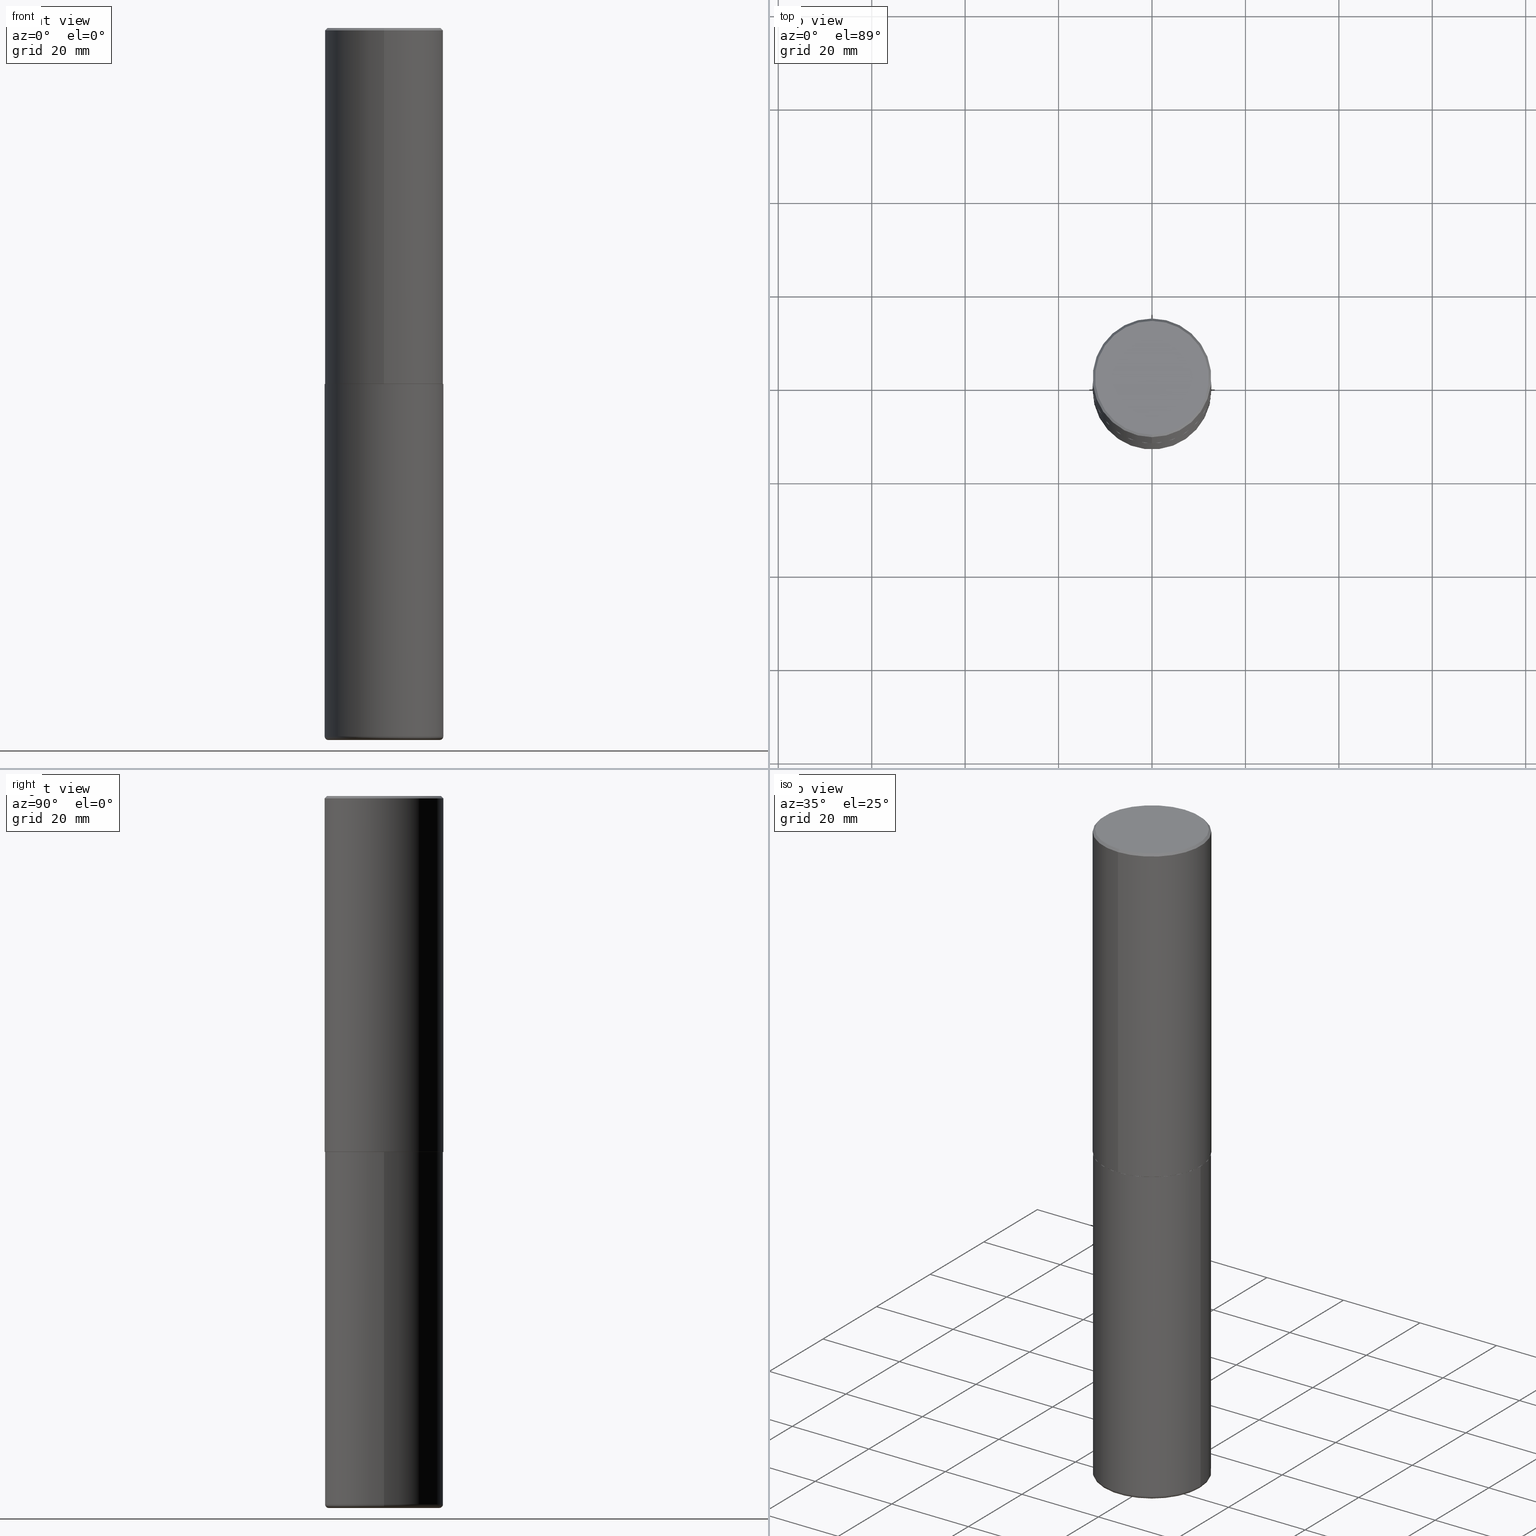
[diagram: canonical four-view strip — front | top / right | iso, engineering-drawing reading convention]
A machine part, canonical four-view strip (front | top / right | iso — engineering-drawing reading convention). The complete STEP part file that produces these views, byte-faithful:
ISO-10303-21;
HEADER;
FILE_DESCRIPTION (( 'STEP AP203' ),
    '1' );
FILE_NAME ('37713.STEP',
    '2024-03-02T08:59:55',
    ( '' ),
    ( '' ),
    'SwSTEP 2.0',
    'SolidWorks 2023',
    '' );
FILE_SCHEMA (( 'CONFIG_CONTROL_DESIGN' ));
ENDSEC;

DATA;
#1 = DIRECTION ( 'NONE',  ( -2.445468806185136597E-29, 3.491481338843145583E-15, 1.000000000000000000 ) ) ;
#2 = EDGE_CURVE ( 'NONE', #150, #393, #335, .T. ) ;
#3 = DIRECTION ( 'NONE',  ( -1.000000000000000000, 6.982962677686265922E-15, -4.876176775795935793E-29 ) ) ;
#4 = EDGE_CURVE ( 'NONE', #184, #339, #85, .T. ) ;
#5 = PERSON_AND_ORGANIZATION_ROLE ( 'creator' ) ;
#6 = AXIS2_PLACEMENT_3D ( 'NONE', #371, #20, #346 ) ;
#7 = LOCAL_TIME ( 3, 59, 55.00000000000000000, #134 ) ;
#8 = PRODUCT_DEFINITION_SHAPE ( 'NONE', 'NONE',  #90 ) ;
#9 = CALENDAR_DATE ( 2024, 2, 3 ) ;
#10 = VERTEX_POINT ( 'NONE', #353 ) ;
#11 = CYLINDRICAL_SURFACE ( 'NONE', #97, 0.5000000000000000000 ) ;
#12 = EDGE_LOOP ( 'NONE', ( #86, #406, #14, #206 ) ) ;
#13 = CARTESIAN_POINT ( 'NONE',  ( 4.889796067399450837E-31, -6.984597435057287381E-17, -0.02000000000000010797 ) ) ;
#14 = ORIENTED_EDGE ( 'NONE', *, *, #34, .F. ) ;
#15 = CIRCLE ( 'NONE', #111, 0.5000000000000002220 ) ;
#16 = DIRECTION ( 'NONE',  ( 0.000000000000000000, 0.000000000000000000, 1.000000000000000000 ) ) ;
#17 = DIRECTION ( 'NONE',  ( -2.445468806185136597E-29, 3.491481338843145583E-15, 1.000000000000000000 ) ) ;
#18 = EDGE_CURVE ( 'NONE', #40, #237, #403, .T. ) ;
#19 = ADVANCED_BREP_SHAPE_REPRESENTATION ( '37713', ( #156, #25, #104 ), #83 ) ;
#20 = DIRECTION ( 'NONE',  ( -2.444898033699712212E-29, 3.492298717528625990E-15, 1.000000000000000000 ) ) ;
#21 = DIRECTION ( 'NONE',  ( 6.982962677686265922E-15, 1.000000000000000000, -3.492298717528626385E-15 ) ) ;
#22 = ORIENTED_EDGE ( 'NONE', *, *, #289, .F. ) ;
#23 = AXIS2_PLACEMENT_3D ( 'NONE', #36, #98, #3 ) ;
#24 = CYLINDRICAL_SURFACE ( 'NONE', #67, 0.5000000000000001110 ) ;
#25 = MANIFOLD_SOLID_BREP ( 'Body-Move/Copy2[2]', #61 ) ;
#26 = DIRECTION ( 'NONE',  ( 1.000000000000000000, -6.982962677686262766E-15, 0.000000000000000000 ) ) ;
#27 = EDGE_CURVE ( 'NONE', #339, #404, #408, .T. ) ;
#28 = PERSON_AND_ORGANIZATION_ROLE ( 'design_supplier' ) ;
#29 = DIRECTION ( 'NONE',  ( -2.444898033699711931E-29, 3.492298717528626385E-15, 1.000000000000000000 ) ) ;
#30 = AXIS2_PLACEMENT_3D ( 'NONE', #95, #1, #132 ) ;
#31 = LINE ( 'NONE', #360, #286 ) ;
#32 = PERSON_AND_ORGANIZATION ( #253, #212 ) ;
#33 = DIRECTION ( 'NONE',  ( -6.982962677686265922E-15, -1.000000000000000000, 3.492298717528625990E-15 ) ) ;
#34 = EDGE_CURVE ( 'NONE', #237, #339, #15, .T. ) ;
#35 = DIRECTION ( 'NONE',  ( -4.851104656540946131E-15, -0.7071067811865473507, -0.7071067811865476838 ) ) ;
#36 = CARTESIAN_POINT ( 'NONE',  ( 4.931676200070994304E-29, -3.489875012836576194E-14, -6.000000000000001776 ) ) ;
#37 = CARTESIAN_POINT ( 'NONE',  ( -3.430248998885764992E-15, -0.5000000000000001110, -0.01999999999999835937 ) ) ;
#38 = EDGE_CURVE ( 'NONE', #184, #40, #74, .T. ) ;
#39 = LENGTH_MEASURE_WITH_UNIT ( LENGTH_MEASURE( 0.02539999999999999897 ), #340 );
#40 = VERTEX_POINT ( 'NONE', #155 ) ;
#41 = DIRECTION ( 'NONE',  ( 1.000000000000000000, 0.000000000000000000, 0.000000000000000000 ) ) ;
#42 = ORIENTED_EDGE ( 'NONE', *, *, #349, .F. ) ;
#43 = AXIS2_PLACEMENT_3D ( 'NONE', #151, #285, #358 ) ;
#44 = CALENDAR_DATE ( 2024, 2, 3 ) ;
#45 = DATE_AND_TIME ( #44, #7 ) ;
#46 = EDGE_CURVE ( 'NONE', #393, #150, #152, .T. ) ;
#47 = ORIENTED_EDGE ( 'NONE', *, *, #417, .T. ) ;
#48 = CIRCLE ( 'NONE', #318, 0.4999999999999999445 ) ;
#49 = DIRECTION ( 'NONE',  ( 5.024295867789263036E-15, 0.7071067811867189912, 0.7071067811863760433 ) ) ;
#50 = EDGE_CURVE ( 'NONE', #136, #209, #231, .T. ) ;
#51 = FACE_OUTER_BOUND ( 'NONE', #78, .T. ) ;
#52 = ORIENTED_EDGE ( 'NONE', *, *, #392, .T. ) ;
#53 = DIMENSIONAL_EXPONENTS ( 1.000000000000000000, 0.000000000000000000, 0.000000000000000000, 0.000000000000000000, 0.000000000000000000, 0.000000000000000000, 0.000000000000000000 ) ;
#54 = FACE_OUTER_BOUND ( 'NONE', #309, .T. ) ;
#55 = AXIS2_PLACEMENT_3D ( 'NONE', #383, #332, #415 ) ;
#56 = ADVANCED_FACE ( 'NONE', ( #92 ), #24, .T. ) ;
#57 = DIRECTION ( 'NONE',  ( 2.444898033699711371E-29, -3.492298717528626385E-15, -1.000000000000000000 ) ) ;
#58 = EDGE_CURVE ( 'NONE', #237, #214, #188, .T. ) ;
#59 = DIRECTION ( 'NONE',  ( -2.444898033699712212E-29, 3.492298717528625990E-15, 1.000000000000000000 ) ) ;
#60 = ORIENTED_EDGE ( 'NONE', *, *, #189, .F. ) ;
#61 = CLOSED_SHELL ( 'NONE', ( #296, #56, #271, #234, #87, #76, #71, #121 ) ) ;
#62 = APPLICATION_CONTEXT ( 'configuration controlled 3d designs of mechanical parts and assemblies' ) ;
#63 = FACE_OUTER_BOUND ( 'NONE', #341, .T. ) ;
#64 = FACE_OUTER_BOUND ( 'NONE', #342, .T. ) ;
#65 = CARTESIAN_POINT ( 'NONE',  ( 0.4699999999999999734, -2.412613605140612280E-14, -5.969999999999999751 ) ) ;
#66 = CARTESIAN_POINT ( 'NONE',  ( 7.334694101099137475E-29, -1.047689615258587837E-14, -3.000000000000000444 ) ) ;
#67 = AXIS2_PLACEMENT_3D ( 'NONE', #213, #59, #218 ) ;
#68 = APPROVAL_PERSON_ORGANIZATION ( #109, #257, #69 ) ;
#69 = APPROVAL_ROLE ( '' ) ;
#70 = EDGE_CURVE ( 'NONE', #209, #404, #127, .T. ) ;
#71 = ADVANCED_FACE ( 'NONE', ( #54 ), #314, .F. ) ;
#72 = DIRECTION ( 'NONE',  ( 1.000000000000000000, -6.982962677686266711E-15, 0.000000000000000000 ) ) ;
#73 = ORIENTED_EDGE ( 'NONE', *, *, #276, .F. ) ;
#74 = CIRCLE ( 'NONE', #277, 0.4989999999999999991 ) ;
#75 = CONICAL_SURFACE ( 'NONE', #390, 0.5000000000000000000, 0.7853981633974446153 ) ;
#76 = ADVANCED_FACE ( 'NONE', ( #345 ), #193, .T. ) ;
#77 = FACE_OUTER_BOUND ( 'NONE', #145, .T. ) ;
#78 = EDGE_LOOP ( 'NONE', ( #240, #310 ) ) ;
#79 = CARTESIAN_POINT ( 'NONE',  ( -0.4699999999999999734, -1.745038354453973785E-14, -6.000000000000001776 ) ) ;
#80 = ORIENTED_EDGE ( 'NONE', *, *, #27, .F. ) ;
#81 = CALENDAR_DATE ( 2024, 2, 3 ) ;
#82 = DIRECTION ( 'NONE',  ( -2.444898033699712212E-29, 3.492298717528625990E-15, 1.000000000000000000 ) ) ;
#83 =( GEOMETRIC_REPRESENTATION_CONTEXT ( 3 ) GLOBAL_UNCERTAINTY_ASSIGNED_CONTEXT ( ( #414 ) ) GLOBAL_UNIT_ASSIGNED_CONTEXT ( ( #278, #395, #102 ) ) REPRESENTATION_CONTEXT ( 'NONE', 'WORKASPACE' ) );
#84 = CARTESIAN_POINT ( 'NONE',  ( -0.5000000000000003331, -1.729142991409307210E-14, -5.969999999999999751 ) ) ;
#85 = LINE ( 'NONE', #249, #416 ) ;
#86 = ORIENTED_EDGE ( 'NONE', *, *, #125, .T. ) ;
#87 = ADVANCED_FACE ( 'NONE', ( #154 ), #288, .T. ) ;
#88 = DIRECTION ( 'NONE',  ( -2.444898033699712212E-29, 3.492298717528625990E-15, 1.000000000000000000 ) ) ;
#89 = EDGE_LOOP ( 'NONE', ( #334, #259, #204, #282 ) ) ;
#90 = PRODUCT_DEFINITION ( 'UNKNOWN', '', #248, #114 ) ;
#91 = CONICAL_SURFACE ( 'NONE', #126, 0.5000000000000000000, 0.7853981633974446153 ) ;
#92 = FACE_OUTER_BOUND ( 'NONE', #89, .T. ) ;
#93 = DIRECTION ( 'NONE',  ( 1.000000000000000000, -6.982962677686263555E-15, 0.000000000000000000 ) ) ;
#94 = APPROVAL_STATUS ( 'not_yet_approved' ) ;
#95 = CARTESIAN_POINT ( 'NONE',  ( 0.000000000000000000, 0.000000000000000000, 0.000000000000000000 ) ) ;
#96 = EDGE_CURVE ( 'NONE', #339, #237, #305, .T. ) ;
#97 = AXIS2_PLACEMENT_3D ( 'NONE', #207, #170, #270 ) ;
#98 = DIRECTION ( 'NONE',  ( 2.438088387897960049E-29, -3.491481338843145188E-15, -1.000000000000000000 ) ) ;
#99 = DIRECTION ( 'NONE',  ( -2.444898033699712212E-29, 3.492298717528625990E-15, 1.000000000000000000 ) ) ;
#100 = CARTESIAN_POINT ( 'NONE',  ( 1.459944877292526494E-28, -2.084414359289357934E-14, -5.969999999999999751 ) ) ;
#101 = APPROVAL ( #94, 'UNSPECIFIED' ) ;
#102 =( NAMED_UNIT ( * ) SI_UNIT ( $, .STERADIAN. ) SOLID_ANGLE_UNIT ( ) );
#103 = VECTOR ( 'NONE', #350, 39.37007874015748143 ) ;
#104 = AXIS2_PLACEMENT_3D ( 'NONE', #205, #16, #41 ) ;
#105 = FACE_OUTER_BOUND ( 'NONE', #398, .T. ) ;
#106 = EDGE_LOOP ( 'NONE', ( #80, #208, #169, #73 ) ) ;
#107 = VERTEX_POINT ( 'NONE', #401 ) ;
#108 = EDGE_CURVE ( 'NONE', #110, #107, #374, .T. ) ;
#109 = PERSON_AND_ORGANIZATION ( #253, #212 ) ;
#110 = VERTEX_POINT ( 'NONE', #84 ) ;
#111 = AXIS2_PLACEMENT_3D ( 'NONE', #405, #88, #254 ) ;
#112 = AXIS2_PLACEMENT_3D ( 'NONE', #362, #366, #72 ) ;
#113 = CC_DESIGN_DATE_AND_TIME_ASSIGNMENT ( #45, #407, ( #90 ) ) ;
#114 = DESIGN_CONTEXT ( 'detailed design', #177, 'design' ) ;
#115 = CARTESIAN_POINT ( 'NONE',  ( -0.5000000000000000000, 3.552713678800500929E-15, -2.459467545127452891E-29 ) ) ;
#116 = AXIS2_PLACEMENT_3D ( 'NONE', #187, #251, #284 ) ;
#117 = CC_DESIGN_SECURITY_CLASSIFICATION ( #418, ( #248 ) ) ;
#118 = DIRECTION ( 'NONE',  ( -4.937700262165728178E-15, -0.7071067811867141062, 0.7071067811863809283 ) ) ;
#119 = DIRECTION ( 'NONE',  ( -6.982962677686265922E-15, -1.000000000000000000, 3.492298717528625990E-15 ) ) ;
#120 = ORIENTED_EDGE ( 'NONE', *, *, #125, .F. ) ;
#121 = ADVANCED_FACE ( 'NONE', ( #51 ), #183, .F. ) ;
#122 = APPROVAL_STATUS ( 'not_yet_approved' ) ;
#123 = DIRECTION ( 'NONE',  ( -2.444898033699711931E-29, 3.492298717528626385E-15, 1.000000000000000000 ) ) ;
#124 = PERSON_AND_ORGANIZATION ( #253, #212 ) ;
#125 = EDGE_CURVE ( 'NONE', #40, #184, #357, .T. ) ;
#126 = AXIS2_PLACEMENT_3D ( 'NONE', #198, #297, #356 ) ;
#127 = LINE ( 'NONE', #158, #103 ) ;
#128 = EDGE_CURVE ( 'NONE', #150, #10, #238, .T. ) ;
#129 = DIRECTION ( 'NONE',  ( -6.982962677686266711E-15, -1.000000000000000000, 3.491481338843145583E-15 ) ) ;
#130 = FACE_OUTER_BOUND ( 'NONE', #369, .T. ) ;
#131 = CARTESIAN_POINT ( 'NONE',  ( 0.4699999999999999734, -2.423088049157142248E-14, -6.000000000000001776 ) ) ;
#132 = DIRECTION ( 'NONE',  ( 1.000000000000000000, -6.982962677686266711E-15, 4.876176775795935793E-29 ) ) ;
#133 = DIRECTION ( 'NONE',  ( -2.445468806185136877E-29, 3.491481338843145188E-15, 1.000000000000000000 ) ) ;
#134 = COORDINATED_UNIVERSAL_TIME_OFFSET ( 5, 0, .BEHIND. ) ;
#135 = AXIS2_PLACEMENT_3D ( 'NONE', #164, #230, #388 ) ;
#136 = VERTEX_POINT ( 'NONE', #302 ) ;
#137 = PLANE ( 'NONE',  #267 ) ;
#138 = ADVANCED_FACE ( 'NONE', ( #63 ), #331, .T. ) ;
#139 = EDGE_LOOP ( 'NONE', ( #147, #245, #269, #272 ) ) ;
#140 = DIRECTION ( 'NONE',  ( -2.444898033699712212E-29, 3.492298717528625990E-15, 1.000000000000000000 ) ) ;
#141 = ORIENTED_EDGE ( 'NONE', *, *, #246, .T. ) ;
#142 = CARTESIAN_POINT ( 'NONE',  ( 1.459944877292526494E-28, -2.084414359289357934E-14, -5.969999999999999751 ) ) ;
#143 = AXIS2_PLACEMENT_3D ( 'NONE', #313, #17, #292 ) ;
#144 = CIRCLE ( 'NONE', #306, 0.4799999999999999267 ) ;
#145 = EDGE_LOOP ( 'NONE', ( #280, #275, #287, #176 ) ) ;
#146 = DATE_TIME_ROLE ( 'classification_date' ) ;
#147 = ORIENTED_EDGE ( 'NONE', *, *, #2, .T. ) ;
#148 = DATE_AND_TIME ( #382, #256 ) ;
#149 = DIRECTION ( 'NONE',  ( -2.444898033699712212E-29, 3.492298717528625990E-15, 1.000000000000000000 ) ) ;
#150 = VERTEX_POINT ( 'NONE', #131 ) ;
#151 = CARTESIAN_POINT ( 'NONE',  ( 7.334694101099137475E-29, -1.047689615258587837E-14, -3.000000000000000444 ) ) ;
#152 = CIRCLE ( 'NONE', #255, 0.4699999999999999734 ) ;
#153 = APPROVAL_PERSON_ORGANIZATION ( #412, #379, #221 ) ;
#154 = FACE_OUTER_BOUND ( 'NONE', #106, .T. ) ;
#155 = CARTESIAN_POINT ( 'NONE',  ( -3.484498376165373188E-15, -0.4990000000000104352, -2.999999999999998668 ) ) ;
#156 = MANIFOLD_SOLID_BREP ( 'Body-Move/Copy2[1]', #165 ) ;
#157 = ORIENTED_EDGE ( 'NONE', *, *, #96, .F. ) ;
#158 = CARTESIAN_POINT ( 'NONE',  ( 3.491481338843133355E-15, 0.4999999999999999445, -0.02000000000000185310 ) ) ;
#159 = AXIS2_PLACEMENT_3D ( 'NONE', #258, #185, #294 ) ;
#160 = APPROVAL_PERSON_ORGANIZATION ( #295, #101, #217 ) ;
#161 = CIRCLE ( 'NONE', #337, 0.03000000000000077258 ) ;
#162 = DIRECTION ( 'NONE',  ( -2.445468806185136597E-29, 3.491481338843145583E-15, 1.000000000000000000 ) ) ;
#163 = CARTESIAN_POINT ( 'NONE',  ( 1.459944877292526494E-28, -2.084414359289357934E-14, -5.969999999999999751 ) ) ;
#164 = CARTESIAN_POINT ( 'NONE',  ( 1.459944877292526494E-28, -2.084414359289357934E-14, -5.969999999999999751 ) ) ;
#165 = CLOSED_SHELL ( 'NONE', ( #307, #199, #400, #410, #389, #138 ) ) ;
#166 = LOCAL_TIME ( 3, 59, 55.00000000000000000, #281 ) ;
#167 = FACE_OUTER_BOUND ( 'NONE', #348, .T. ) ;
#168 = DIRECTION ( 'NONE',  ( -2.445468806185136597E-29, 3.491481338843145583E-15, 1.000000000000000000 ) ) ;
#169 = ORIENTED_EDGE ( 'NONE', *, *, #58, .T. ) ;
#170 = DIRECTION ( 'NONE',  ( -2.445468806185136597E-29, 3.491481338843145583E-15, 1.000000000000000000 ) ) ;
#171 = CC_DESIGN_APPROVAL ( #379, ( #418 ) ) ;
#172 = ORIENTED_EDGE ( 'NONE', *, *, #229, .F. ) ;
#173 = APPLICATION_PROTOCOL_DEFINITION ( 'international standard', 'config_control_design', 1994, #62 ) ;
#174 = ORIENTED_EDGE ( 'NONE', *, *, #50, .F. ) ;
#175 = CARTESIAN_POINT ( 'NONE',  ( 7.336406418555409790E-29, -1.047444401652943635E-14, -3.000000000000000444 ) ) ;
#176 = ORIENTED_EDGE ( 'NONE', *, *, #392, .F. ) ;
#177 = APPLICATION_CONTEXT ( 'configuration controlled 3d designs of mechanical parts and assemblies' ) ;
#178 = CARTESIAN_POINT ( 'NONE',  ( 3.491481338843133355E-15, 0.4999999999999999445, -0.02000000000000185310 ) ) ;
#179 = ORIENTED_EDGE ( 'NONE', *, *, #46, .F. ) ;
#180 = CC_DESIGN_PERSON_AND_ORGANIZATION_ASSIGNMENT ( #338, #5, ( #90 ) ) ;
#181 = CIRCLE ( 'NONE', #186, 0.5000000000000000000 ) ;
#182 = DIRECTION ( 'NONE',  ( -6.982962677686265922E-15, -1.000000000000000000, 3.492298717528625990E-15 ) ) ;
#183 = PLANE ( 'NONE',  #224 ) ;
#184 = VERTEX_POINT ( 'NONE', #384 ) ;
#185 = DIRECTION ( 'NONE',  ( -2.444898033699711371E-29, 3.492298717528626385E-15, 1.000000000000000000 ) ) ;
#186 = AXIS2_PLACEMENT_3D ( 'NONE', #411, #99, #324 ) ;
#187 = CARTESIAN_POINT ( 'NONE',  ( 7.332249203065438921E-29, -1.047340385386834930E-14, -2.999000000000000554 ) ) ;
#188 = LINE ( 'NONE', #322, #311 ) ;
#189 = EDGE_CURVE ( 'NONE', #10, #364, #31, .T. ) ;
#190 = ORIENTED_EDGE ( 'NONE', *, *, #46, .T. ) ;
#191 = PERSON_AND_ORGANIZATION_ROLE ( 'creator' ) ;
#192 = DIRECTION ( 'NONE',  ( 2.444898033699712212E-29, -3.492298717528625990E-15, -1.000000000000000000 ) ) ;
#193 = CONICAL_SURFACE ( 'NONE', #6, 0.4989999999999999991, 0.7853981633976873100 ) ;
#194 = APPROVAL_DATE_TIME ( #148, #101 ) ;
#195 = LOCAL_TIME ( 3, 59, 55.00000000000000000, #203 ) ;
#196 = CARTESIAN_POINT ( 'NONE',  ( -2.514251026725007597E-45, 3.591362713352002573E-31, 1.028366415314403880E-16 ) ) ;
#197 = DATE_AND_TIME ( #81, #166 ) ;
#198 = CARTESIAN_POINT ( 'NONE',  ( 4.889796067399450837E-31, -6.984597435057287381E-17, -0.02000000000000010797 ) ) ;
#199 = ADVANCED_FACE ( 'NONE', ( #380 ), #232, .T. ) ;
#200 = DIRECTION ( 'NONE',  ( -6.982962677686265922E-15, -1.000000000000000000, 3.284787166730577015E-15 ) ) ;
#201 = AXIS2_PLACEMENT_3D ( 'NONE', #100, #162, #227 ) ;
#202 = DIRECTION ( 'NONE',  ( 6.982962677686265922E-15, 1.000000000000000000, -3.491643216902136408E-15 ) ) ;
#203 = COORDINATED_UNIVERSAL_TIME_OFFSET ( 5, 0, .BEHIND. ) ;
#204 = ORIENTED_EDGE ( 'NONE', *, *, #417, .F. ) ;
#205 = CARTESIAN_POINT ( 'NONE',  ( 0.000000000000000000, 0.000000000000000000, 0.000000000000000000 ) ) ;
#206 = ORIENTED_EDGE ( 'NONE', *, *, #18, .F. ) ;
#207 = CARTESIAN_POINT ( 'NONE',  ( 0.000000000000000000, 0.000000000000000000, 0.000000000000000000 ) ) ;
#208 = ORIENTED_EDGE ( 'NONE', *, *, #96, .T. ) ;
#209 = VERTEX_POINT ( 'NONE', #264 ) ;
#210 = SHAPE_DEFINITION_REPRESENTATION ( #8, #19 ) ;
#211 = CARTESIAN_POINT ( 'NONE',  ( 1.467281283711082406E-28, -2.094888803305887902E-14, -6.000000000000001776 ) ) ;
#212 = ORGANIZATION ( 'UNSPECIFIED', 'UNSPECIFIED', '' ) ;
#213 = CARTESIAN_POINT ( 'NONE',  ( 0.000000000000000000, 0.000000000000000000, 0.000000000000000000 ) ) ;
#214 = VERTEX_POINT ( 'NONE', #37 ) ;
#215 = CARTESIAN_POINT ( 'NONE',  ( 7.334694101099137475E-29, -1.047689615258587837E-14, -3.000000000000000444 ) ) ;
#216 = CARTESIAN_POINT ( 'NONE',  ( 0.000000000000000000, 0.000000000000000000, 0.000000000000000000 ) ) ;
#217 = APPROVAL_ROLE ( '' ) ;
#218 = DIRECTION ( 'NONE',  ( -6.982962677686265922E-15, -1.000000000000000000, 3.492298717528625990E-15 ) ) ;
#219 = ORIENTED_EDGE ( 'NONE', *, *, #108, .T. ) ;
#220 = DIRECTION ( 'NONE',  ( 7.105427357601001859E-15, 1.000000000000000000, -3.491481338843145583E-15 ) ) ;
#221 = APPROVAL_ROLE ( '' ) ;
#222 = CARTESIAN_POINT ( 'NONE',  ( 3.552713678800539584E-15, 0.4999999999999898970, -2.999000000000001886 ) ) ;
#223 = EDGE_CURVE ( 'NONE', #10, #110, #48, .T. ) ;
#224 = AXIS2_PLACEMENT_3D ( 'NONE', #315, #57, #21 ) ;
#225 = CALENDAR_DATE ( 2024, 2, 3 ) ;
#226 = CIRCLE ( 'NONE', #325, 0.5000000000000000000 ) ;
#227 = DIRECTION ( 'NONE',  ( 1.000000000000000000, -6.982962677686268288E-15, 4.883557194083112901E-29 ) ) ;
#228 = FACE_OUTER_BOUND ( 'NONE', #12, .T. ) ;
#229 = EDGE_CURVE ( 'NONE', #393, #110, #161, .T. ) ;
#230 = DIRECTION ( 'NONE',  ( -2.445468806185136597E-29, 3.491481338843145583E-15, 1.000000000000000000 ) ) ;
#231 = CIRCLE ( 'NONE', #316, 0.4799999999999999267 ) ;
#232 = TOROIDAL_SURFACE ( 'NONE', #201, 0.4699999999999999734, 0.03000000000000077258 ) ;
#233 = MECHANICAL_CONTEXT ( 'NONE', #62, 'mechanical' ) ;
#234 = ADVANCED_FACE ( 'NONE', ( #64 ), #91, .T. ) ;
#235 = DATE_AND_TIME ( #9, #195 ) ;
#236 = DIRECTION ( 'NONE',  ( 2.438088387897960049E-29, -3.491481338843145188E-15, -1.000000000000000000 ) ) ;
#237 = VERTEX_POINT ( 'NONE', #262 ) ;
#238 = CIRCLE ( 'NONE', #396, 0.03000000000000077258 ) ;
#239 = VECTOR ( 'NONE', #35, 39.37007874015748143 ) ;
#240 = ORIENTED_EDGE ( 'NONE', *, *, #349, .T. ) ;
#241 = CC_DESIGN_PERSON_AND_ORGANIZATION_ASSIGNMENT ( #32, #323, ( #418 ) ) ;
#242 = DIRECTION ( 'NONE',  ( -2.445468806185136597E-29, 3.491481338843145583E-15, 1.000000000000000000 ) ) ;
#243 = ORIENTED_EDGE ( 'NONE', *, *, #246, .F. ) ;
#244 = EDGE_LOOP ( 'NONE', ( #304, #375, #290, #157 ) ) ;
#245 = ORIENTED_EDGE ( 'NONE', *, *, #229, .T. ) ;
#246 = EDGE_CURVE ( 'NONE', #136, #214, #330, .T. ) ;
#247 = DIRECTION ( 'NONE',  ( -2.445468806185136877E-29, 3.491481338843145188E-15, 1.000000000000000000 ) ) ;
#248 = PRODUCT_DEFINITION_FORMATION_WITH_SPECIFIED_SOURCE ( 'ANY', '', #399, .NOT_KNOWN. ) ;
#249 = CARTESIAN_POINT ( 'NONE',  ( 3.545608251442972496E-15, 0.4989999999999895630, -3.000000000000001776 ) ) ;
#250 = ORIENTED_EDGE ( 'NONE', *, *, #289, .T. ) ;
#251 = DIRECTION ( 'NONE',  ( -2.444898033699712212E-29, 3.492298717528625990E-15, 1.000000000000000000 ) ) ;
#252 = EDGE_CURVE ( 'NONE', #110, #10, #279, .T. ) ;
#253 = PERSON ( 'UNSPECIFIED', 'UNSPECIFIED', 'UNSPECIFIED', ('UNSPECIFIED'), ('UNSPECIFIED'), ('UNSPECIFIED') ) ;
#254 = DIRECTION ( 'NONE',  ( -6.982962677686266711E-15, -1.000000000000000000, 3.278217592397114284E-15 ) ) ;
#255 = AXIS2_PLACEMENT_3D ( 'NONE', #211, #372, #26 ) ;
#256 = LOCAL_TIME ( 3, 59, 55.00000000000000000, #321 ) ;
#257 = APPROVAL ( #361, 'UNSPECIFIED' ) ;
#258 = CARTESIAN_POINT ( 'NONE',  ( 7.334694101099137475E-29, -1.047689615258587837E-14, -3.000000000000000444 ) ) ;
#259 = ORIENTED_EDGE ( 'NONE', *, *, #27, .T. ) ;
#260 = PERSON_AND_ORGANIZATION ( #253, #212 ) ;
#261 = CARTESIAN_POINT ( 'NONE',  ( 4.889796067399450837E-31, -6.984597435057287381E-17, -0.02000000000000010797 ) ) ;
#262 = CARTESIAN_POINT ( 'NONE',  ( -3.491481338843061569E-15, -0.5000000000000107692, -2.998999999999998778 ) ) ;
#263 = CIRCLE ( 'NONE', #55, 0.5000000000000000000 ) ;
#264 = CARTESIAN_POINT ( 'NONE',  ( 3.421651712066270057E-15, 0.4799999999999999267, -1.573466742882299844E-15 ) ) ;
#265 = CARTESIAN_POINT ( 'NONE',  ( -0.4699999999999999734, -1.750459273482110708E-14, -5.969999999999999751 ) ) ;
#266 = APPLICATION_PROTOCOL_DEFINITION ( 'international standard', 'config_control_design', 1994, #177 ) ;
#267 = AXIS2_PLACEMENT_3D ( 'NONE', #175, #236, #268 ) ;
#268 = DIRECTION ( 'NONE',  ( -1.000000000000000000, 6.982962677686265922E-15, -4.876176775795935793E-29 ) ) ;
#269 = ORIENTED_EDGE ( 'NONE', *, *, #223, .F. ) ;
#270 = DIRECTION ( 'NONE',  ( 1.000000000000000000, -6.982962677686266711E-15, 4.876176775795935793E-29 ) ) ;
#271 = ADVANCED_FACE ( 'NONE', ( #299 ), #75, .T. ) ;
#272 = ORIENTED_EDGE ( 'NONE', *, *, #128, .F. ) ;
#273 = ORIENTED_EDGE ( 'NONE', *, *, #70, .T. ) ;
#274 = DIRECTION ( 'NONE',  ( -6.982962677686265922E-15, -1.000000000000000000, 3.491643216902136408E-15 ) ) ;
#275 = ORIENTED_EDGE ( 'NONE', *, *, #252, .T. ) ;
#276 = EDGE_CURVE ( 'NONE', #404, #214, #181, .T. ) ;
#277 = AXIS2_PLACEMENT_3D ( 'NONE', #215, #409, #347 ) ;
#278 =( CONVERSION_BASED_UNIT ( 'INCH', #39 ) LENGTH_UNIT ( ) NAMED_UNIT ( #53 ) );
#279 = CIRCLE ( 'NONE', #135, 0.4999999999999999445 ) ;
#280 = ORIENTED_EDGE ( 'NONE', *, *, #108, .F. ) ;
#281 = COORDINATED_UNIVERSAL_TIME_OFFSET ( 5, 0, .BEHIND. ) ;
#282 = ORIENTED_EDGE ( 'NONE', *, *, #58, .F. ) ;
#283 = CC_DESIGN_PERSON_AND_ORGANIZATION_ASSIGNMENT ( #124, #191, ( #248 ) ) ;
#284 = DIRECTION ( 'NONE',  ( -6.982962677686266711E-15, -1.000000000000000000, 3.278217592397114284E-15 ) ) ;
#285 = DIRECTION ( 'NONE',  ( -2.444898033699712212E-29, 3.492298717528625990E-15, 1.000000000000000000 ) ) ;
#286 = VECTOR ( 'NONE', #133, 39.37007874015748143 ) ;
#287 = ORIENTED_EDGE ( 'NONE', *, *, #189, .T. ) ;
#288 = CYLINDRICAL_SURFACE ( 'NONE', #370, 0.5000000000000001110 ) ;
#289 = EDGE_CURVE ( 'NONE', #364, #107, #263, .T. ) ;
#290 = ORIENTED_EDGE ( 'NONE', *, *, #18, .T. ) ;
#291 = DATE_AND_TIME ( #225, #351 ) ;
#292 = DIRECTION ( 'NONE',  ( 1.000000000000000000, -6.982962677686262766E-15, 0.000000000000000000 ) ) ;
#293 = EDGE_LOOP ( 'NONE', ( #174, #141, #47, #381 ) ) ;
#294 = DIRECTION ( 'NONE',  ( -6.982962677686265922E-15, -1.000000000000000000, 3.492298717528626385E-15 ) ) ;
#295 = PERSON_AND_ORGANIZATION ( #253, #212 ) ;
#296 = ADVANCED_FACE ( 'NONE', ( #228 ), #385, .T. ) ;
#297 = DIRECTION ( 'NONE',  ( 2.444898033699712212E-29, -3.492298717528625990E-15, -1.000000000000000000 ) ) ;
#298 = DIRECTION ( 'NONE',  ( 1.000000000000000000, -6.982962677686217012E-15, 0.000000000000000000 ) ) ;
#299 = FACE_OUTER_BOUND ( 'NONE', #293, .T. ) ;
#300 = AXIS2_PLACEMENT_3D ( 'NONE', #66, #359, #200 ) ;
#301 = CYLINDRICAL_SURFACE ( 'NONE', #30, 0.5000000000000000000 ) ;
#302 = CARTESIAN_POINT ( 'NONE',  ( -3.361644018908049661E-15, -0.4799999999999999267, 1.779140025945180744E-15 ) ) ;
#303 = APPROVAL_DATE_TIME ( #235, #257 ) ;
#304 = ORIENTED_EDGE ( 'NONE', *, *, #4, .F. ) ;
#305 = CIRCLE ( 'NONE', #116, 0.5000000000000002220 ) ;
#306 = AXIS2_PLACEMENT_3D ( 'NONE', #196, #328, #33 ) ;
#307 = ADVANCED_FACE ( 'NONE', ( #167 ), #301, .T. ) ;
#308 = PERSON_AND_ORGANIZATION ( #253, #212 ) ;
#309 = EDGE_LOOP ( 'NONE', ( #120, #368 ) ) ;
#310 = ORIENTED_EDGE ( 'NONE', *, *, #50, .T. ) ;
#311 = VECTOR ( 'NONE', #29, 39.37007874015748143 ) ;
#312 = CC_DESIGN_APPROVAL ( #101, ( #248 ) ) ;
#313 = CARTESIAN_POINT ( 'NONE',  ( 1.467281283711082406E-28, -2.094888803305887902E-14, -6.000000000000001776 ) ) ;
#314 = PLANE ( 'NONE',  #159 ) ;
#315 = CARTESIAN_POINT ( 'NONE',  ( 3.351822085289407153E-15, 0.4799999999999999267, -1.624885063648019971E-15 ) ) ;
#316 = AXIS2_PLACEMENT_3D ( 'NONE', #317, #82, #182 ) ;
#317 = CARTESIAN_POINT ( 'NONE',  ( -2.514251026725007597E-45, 3.591362713352002573E-31, 1.028366415314403880E-16 ) ) ;
#318 = AXIS2_PLACEMENT_3D ( 'NONE', #163, #168, #93 ) ;
#319 = CC_DESIGN_PERSON_AND_ORGANIZATION_ASSIGNMENT ( #260, #28, ( #248 ) ) ;
#320 = CARTESIAN_POINT ( 'NONE',  ( 3.552713678800501718E-15, 0.5000000000000001110, -1.746149358764313390E-15 ) ) ;
#321 = COORDINATED_UNIVERSAL_TIME_OFFSET ( 5, 0, .BEHIND. ) ;
#322 = CARTESIAN_POINT ( 'NONE',  ( -3.491481338843133750E-15, -0.5000000000000001110, 1.746149358764313390E-15 ) ) ;
#323 = PERSON_AND_ORGANIZATION_ROLE ( 'classification_officer' ) ;
#324 = DIRECTION ( 'NONE',  ( -6.982962677686265922E-15, -1.000000000000000000, 3.491643216902136408E-15 ) ) ;
#325 = AXIS2_PLACEMENT_3D ( 'NONE', #13, #140, #274 ) ;
#326 = PRODUCT_RELATED_PRODUCT_CATEGORY ( 'detail', '', ( #399 ) ) ;
#327 = COORDINATED_UNIVERSAL_TIME_OFFSET ( 5, 0, .BEHIND. ) ;
#328 = DIRECTION ( 'NONE',  ( -2.444898033699712212E-29, 3.492298717528625990E-15, 1.000000000000000000 ) ) ;
#329 = SECURITY_CLASSIFICATION_LEVEL ( 'unclassified' ) ;
#330 = LINE ( 'NONE', #354, #239 ) ;
#331 = PLANE ( 'NONE',  #23 ) ;
#332 = DIRECTION ( 'NONE',  ( -2.445468806185136597E-29, 3.491481338843145583E-15, 1.000000000000000000 ) ) ;
#333 = DIRECTION ( 'NONE',  ( 1.000000000000000000, -6.982962677686268288E-15, 4.883557194083112901E-29 ) ) ;
#334 = ORIENTED_EDGE ( 'NONE', *, *, #34, .T. ) ;
#335 = CIRCLE ( 'NONE', #143, 0.4699999999999999734 ) ;
#336 = CC_DESIGN_DATE_AND_TIME_ASSIGNMENT ( #291, #146, ( #418 ) ) ;
#337 = AXIS2_PLACEMENT_3D ( 'NONE', #265, #220, #386 ) ;
#338 = PERSON_AND_ORGANIZATION ( #253, #212 ) ;
#339 = VERTEX_POINT ( 'NONE', #222 ) ;
#340 =( LENGTH_UNIT ( ) NAMED_UNIT ( * ) SI_UNIT ( $, .METRE. ) );
#341 = EDGE_LOOP ( 'NONE', ( #367, #179 ) ) ;
#342 = EDGE_LOOP ( 'NONE', ( #243, #42, #273, #373 ) ) ;
#343 = VECTOR ( 'NONE', #118, 39.37007874015748143 ) ;
#344 = CC_DESIGN_APPROVAL ( #257, ( #90 ) ) ;
#345 = FACE_OUTER_BOUND ( 'NONE', #244, .T. ) ;
#346 = DIRECTION ( 'NONE',  ( -6.982962677686265922E-15, -1.000000000000000000, 3.284787166730577015E-15 ) ) ;
#347 = DIRECTION ( 'NONE',  ( -6.982962677686265922E-15, -1.000000000000000000, 3.284787166730577015E-15 ) ) ;
#348 = EDGE_LOOP ( 'NONE', ( #397, #219, #22, #60 ) ) ;
#349 = EDGE_CURVE ( 'NONE', #209, #136, #144, .T. ) ;
#350 = DIRECTION ( 'NONE',  ( 4.937700262164529898E-15, 0.7071067811865424657, -0.7071067811865525687 ) ) ;
#351 = LOCAL_TIME ( 3, 59, 55.00000000000000000, #327 ) ;
#352 = ORIENTED_EDGE ( 'NONE', *, *, #252, .F. ) ;
#353 = CARTESIAN_POINT ( 'NONE',  ( 0.5000000000000003331, -2.433562493173670954E-14, -5.969999999999999751 ) ) ;
#354 = CARTESIAN_POINT ( 'NONE',  ( -3.430248998885764992E-15, -0.5000000000000001110, -0.01999999999999835937 ) ) ;
#355 = APPROVAL_DATE_TIME ( #197, #379 ) ;
#356 = DIRECTION ( 'NONE',  ( 6.982962677686265922E-15, 1.000000000000000000, -3.491643216902136408E-15 ) ) ;
#357 = CIRCLE ( 'NONE', #43, 0.4989999999999999991 ) ;
#358 = DIRECTION ( 'NONE',  ( -6.982962677686265922E-15, -1.000000000000000000, 3.284787166730577015E-15 ) ) ;
#359 = DIRECTION ( 'NONE',  ( -2.444898033699712212E-29, 3.492298717528625990E-15, 1.000000000000000000 ) ) ;
#360 = CARTESIAN_POINT ( 'NONE',  ( 0.5000000000000000000, -3.491481338843133355E-15, 2.438088387897967896E-29 ) ) ;
#361 = APPROVAL_STATUS ( 'not_yet_approved' ) ;
#362 = CARTESIAN_POINT ( 'NONE',  ( 7.336406418555409790E-29, -1.047444401652943635E-14, -3.000000000000000444 ) ) ;
#363 = PERSON_AND_ORGANIZATION_ROLE ( 'design_owner' ) ;
#364 = VERTEX_POINT ( 'NONE', #413 ) ;
#365 = VECTOR ( 'NONE', #247, 39.37007874015748143 ) ;
#366 = DIRECTION ( 'NONE',  ( -2.445468806185136597E-29, 3.491481338843145583E-15, 1.000000000000000000 ) ) ;
#367 = ORIENTED_EDGE ( 'NONE', *, *, #2, .F. ) ;
#368 = ORIENTED_EDGE ( 'NONE', *, *, #38, .F. ) ;
#369 = EDGE_LOOP ( 'NONE', ( #172, #190, #394, #352 ) ) ;
#370 = AXIS2_PLACEMENT_3D ( 'NONE', #216, #149, #119 ) ;
#371 = CARTESIAN_POINT ( 'NONE',  ( 7.334694101099137475E-29, -1.047689615258587837E-14, -3.000000000000000444 ) ) ;
#372 = DIRECTION ( 'NONE',  ( -2.445468806185136597E-29, 3.491481338843145583E-15, 1.000000000000000000 ) ) ;
#373 = ORIENTED_EDGE ( 'NONE', *, *, #276, .T. ) ;
#374 = LINE ( 'NONE', #115, #365 ) ;
#375 = ORIENTED_EDGE ( 'NONE', *, *, #38, .T. ) ;
#376 = VECTOR ( 'NONE', #123, 39.37007874015748143 ) ;
#377 = CARTESIAN_POINT ( 'NONE',  ( -3.484498376165373188E-15, -0.4990000000000104352, -2.999999999999998668 ) ) ;
#378 = AXIS2_PLACEMENT_3D ( 'NONE', #142, #242, #333 ) ;
#379 = APPROVAL ( #122, 'UNSPECIFIED' ) ;
#380 = FACE_OUTER_BOUND ( 'NONE', #139, .T. ) ;
#381 = ORIENTED_EDGE ( 'NONE', *, *, #70, .F. ) ;
#382 = CALENDAR_DATE ( 2024, 2, 3 ) ;
#383 = CARTESIAN_POINT ( 'NONE',  ( 7.336406418555409790E-29, -1.047444401652943635E-14, -3.000000000000000444 ) ) ;
#384 = CARTESIAN_POINT ( 'NONE',  ( 3.549160965121773789E-15, 0.4989999999999895630, -3.000000000000001776 ) ) ;
#385 = CONICAL_SURFACE ( 'NONE', #300, 0.4989999999999999991, 0.7853981633976873100 ) ;
#386 = DIRECTION ( 'NONE',  ( -1.000000000000000000, 7.105427357601001859E-15, 0.000000000000000000 ) ) ;
#387 = CC_DESIGN_PERSON_AND_ORGANIZATION_ASSIGNMENT ( #308, #363, ( #399 ) ) ;
#388 = DIRECTION ( 'NONE',  ( 1.000000000000000000, -6.982962677686263555E-15, 0.000000000000000000 ) ) ;
#389 = ADVANCED_FACE ( 'NONE', ( #130 ), #402, .T. ) ;
#390 = AXIS2_PLACEMENT_3D ( 'NONE', #261, #192, #202 ) ;
#391 = CIRCLE ( 'NONE', #112, 0.5000000000000000000 ) ;
#392 = EDGE_CURVE ( 'NONE', #107, #364, #391, .T. ) ;
#393 = VERTEX_POINT ( 'NONE', #79 ) ;
#394 = ORIENTED_EDGE ( 'NONE', *, *, #128, .T. ) ;
#395 =( NAMED_UNIT ( * ) PLANE_ANGLE_UNIT ( ) SI_UNIT ( $, .RADIAN. ) );
#396 = AXIS2_PLACEMENT_3D ( 'NONE', #65, #129, #298 ) ;
#397 = ORIENTED_EDGE ( 'NONE', *, *, #223, .T. ) ;
#398 = EDGE_LOOP ( 'NONE', ( #250, #52 ) ) ;
#399 = PRODUCT ( '37713', '37713', '', ( #233 ) ) ;
#400 = ADVANCED_FACE ( 'NONE', ( #105 ), #137, .F. ) ;
#401 = CARTESIAN_POINT ( 'NONE',  ( -0.5000000000000000000, -1.210658012591100613E-14, -3.000000000000000444 ) ) ;
#402 = TOROIDAL_SURFACE ( 'NONE', #378, 0.4699999999999999734, 0.03000000000000077258 ) ;
#403 = LINE ( 'NONE', #377, #343 ) ;
#404 = VERTEX_POINT ( 'NONE', #178 ) ;
#405 = CARTESIAN_POINT ( 'NONE',  ( 7.332249203065438921E-29, -1.047340385386834930E-14, -2.999000000000000554 ) ) ;
#406 = ORIENTED_EDGE ( 'NONE', *, *, #4, .T. ) ;
#407 = DATE_TIME_ROLE ( 'creation_date' ) ;
#408 = LINE ( 'NONE', #320, #376 ) ;
#409 = DIRECTION ( 'NONE',  ( -2.444898033699712212E-29, 3.492298717528625990E-15, 1.000000000000000000 ) ) ;
#410 = ADVANCED_FACE ( 'NONE', ( #77 ), #11, .T. ) ;
#411 = CARTESIAN_POINT ( 'NONE',  ( 4.889796067399450837E-31, -6.984597435057287381E-17, -0.02000000000000010797 ) ) ;
#412 = PERSON_AND_ORGANIZATION ( #253, #212 ) ;
#413 = CARTESIAN_POINT ( 'NONE',  ( 0.5000000000000000000, -1.396592535537257129E-14, -3.000000000000000444 ) ) ;
#414 = UNCERTAINTY_MEASURE_WITH_UNIT (LENGTH_MEASURE( 1.000000000000000082E-05 ), #278, 'distance_accuracy_value', 'NONE');
#415 = DIRECTION ( 'NONE',  ( 1.000000000000000000, -6.982962677686266711E-15, 0.000000000000000000 ) ) ;
#416 = VECTOR ( 'NONE', #49, 39.37007874015748143 ) ;
#417 = EDGE_CURVE ( 'NONE', #214, #404, #226, .T. ) ;
#418 = SECURITY_CLASSIFICATION ( '', '', #329 ) ;
ENDSEC;
END-ISO-10303-21;
